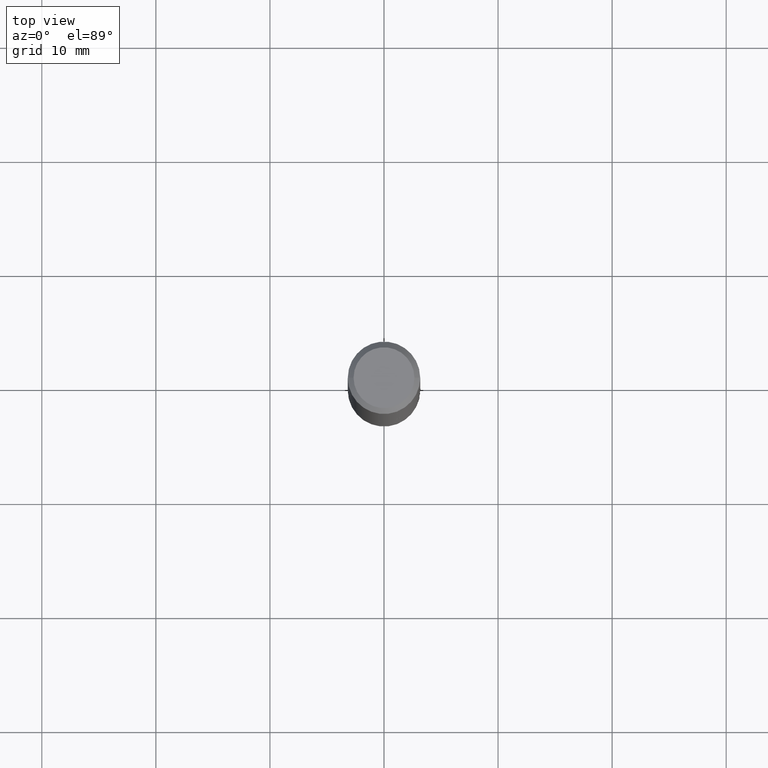
[diagram: clean part render]
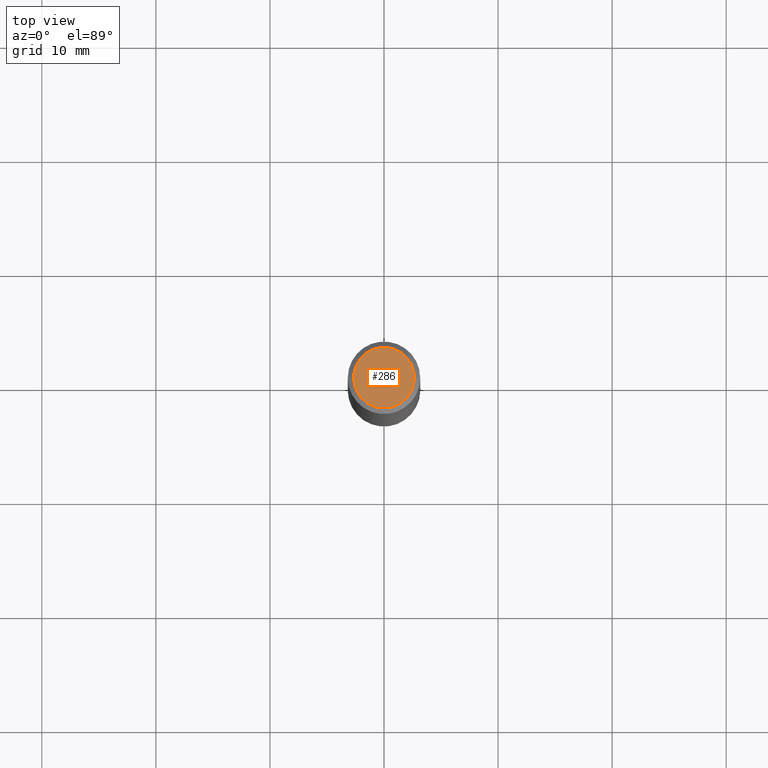
[diagram: same view with one face highlighted and labeled with its STEP entity id]
A machine part, top view. The second image highlights one B-rep face of the part: STEP entity #286.
In plain terms, the highlighted planar face has unit normal (0, -0, -1).
Its self-contained STEP definition (entity closure, byte-faithful):
#2 = EDGE_CURVE ( 'NONE', #347, #315, #365, .T. ) ;
#3 = AXIS2_PLACEMENT_3D ( 'NONE', #12, #95, #208 ) ;
#5 = CARTESIAN_POINT ( 'NONE',  ( 0.1049999999999998018, -8.238720831321562839E-16, -8.537024980195379109E-18 ) ) ;
#12 = CARTESIAN_POINT ( 'NONE',  ( 7.332110811570565452E-16, 0.1049999999999998018, -3.708740530686300305E-16 ) ) ;
#31 = CARTESIAN_POINT ( 'NONE',  ( 2.087702828670439639E-46, -2.980686340760894400E-32, -8.537024980200822558E-18 ) ) ;
#48 = ORIENTED_EDGE ( 'NONE', *, *, #187, .T. ) ;
#95 = DIRECTION ( 'NONE',  ( 2.438088387897960049E-29, -3.491481338843145188E-15, -1.000000000000000000 ) ) ;
#99 = ORIENTED_EDGE ( 'NONE', *, *, #2, .T. ) ;
#117 = CARTESIAN_POINT ( 'NONE',  ( 2.087702828670439639E-46, -2.980686340760894400E-32, -8.537024980200822558E-18 ) ) ;
#141 = AXIS2_PLACEMENT_3D ( 'NONE', #117, #291, #166 ) ;
#166 = DIRECTION ( 'NONE',  ( 1.000000000000000000, -6.982962677686265922E-15, 4.876206205277402997E-29 ) ) ;
#187 = EDGE_CURVE ( 'NONE', #315, #347, #265, .T. ) ;
#202 = DIRECTION ( 'NONE',  ( -2.445468806185136597E-29, 3.491481338843145583E-15, 1.000000000000000000 ) ) ;
#204 = AXIS2_PLACEMENT_3D ( 'NONE', #31, #202, #260 ) ;
#208 = DIRECTION ( 'NONE',  ( -1.000000000000000000, 6.982962677686265922E-15, -4.876176775795935793E-29 ) ) ;
#244 = FACE_OUTER_BOUND ( 'NONE', #290, .T. ) ;
#253 = CARTESIAN_POINT ( 'NONE',  ( -0.1049999999999998018, 7.681258945454876027E-16, -8.537024980206071872E-18 ) ) ;
#260 = DIRECTION ( 'NONE',  ( 1.000000000000000000, -6.982962677686265922E-15, 4.876206205277402997E-29 ) ) ;
#265 = CIRCLE ( 'NONE', #141, 0.1049999999999998018 ) ;
#286 = ADVANCED_FACE ( 'NONE', ( #244 ), #360, .F. ) ;
#290 = EDGE_LOOP ( 'NONE', ( #48, #99 ) ) ;
#291 = DIRECTION ( 'NONE',  ( -2.445468806185136597E-29, 3.491481338843145583E-15, 1.000000000000000000 ) ) ;
#315 = VERTEX_POINT ( 'NONE', #253 ) ;
#347 = VERTEX_POINT ( 'NONE', #5 ) ;
#360 = PLANE ( 'NONE',  #3 ) ;
#365 = CIRCLE ( 'NONE', #204, 0.1049999999999998018 ) ;